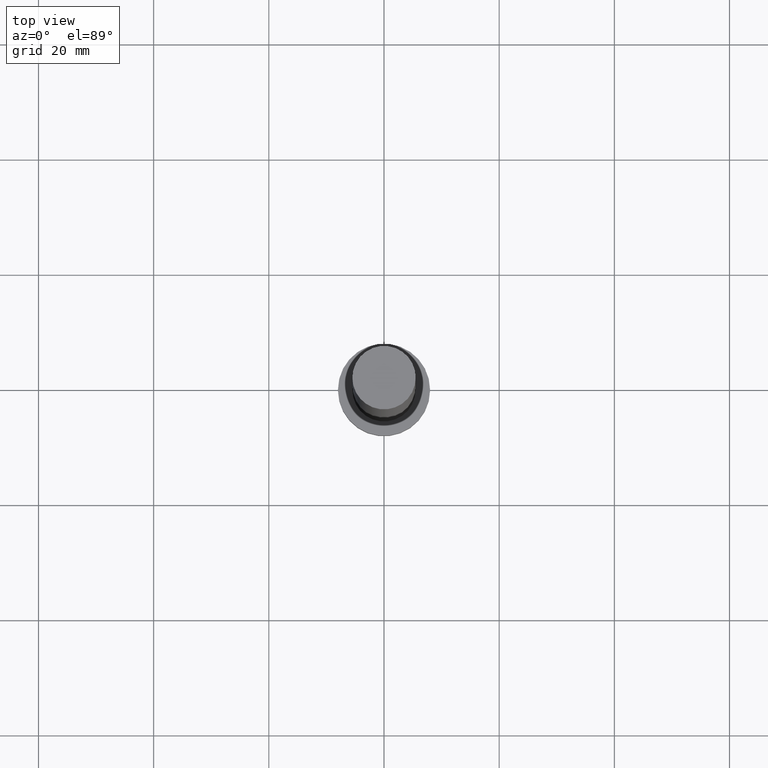
[diagram: clean part render]
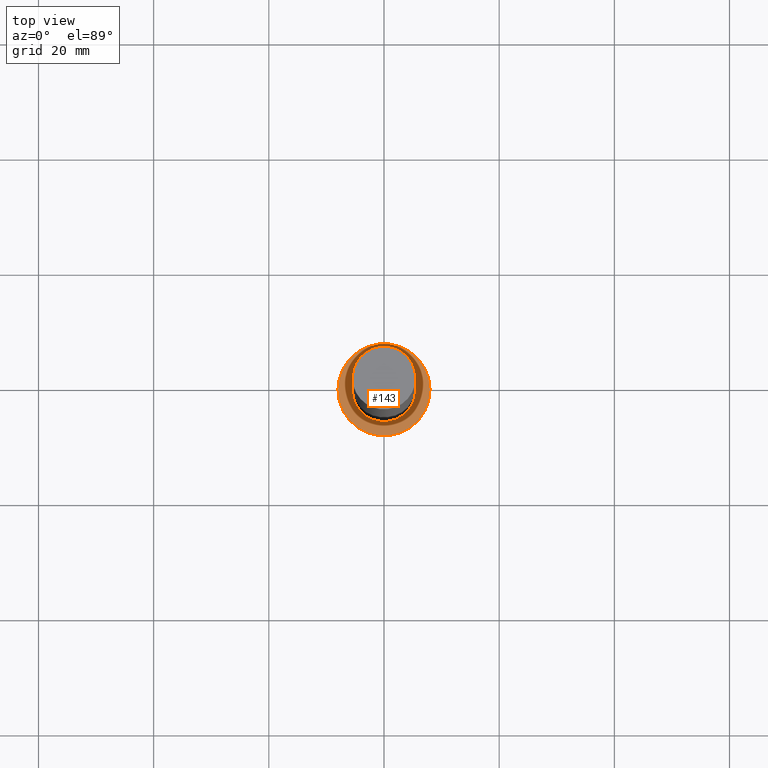
[diagram: same view with one face highlighted and labeled with its STEP entity id]
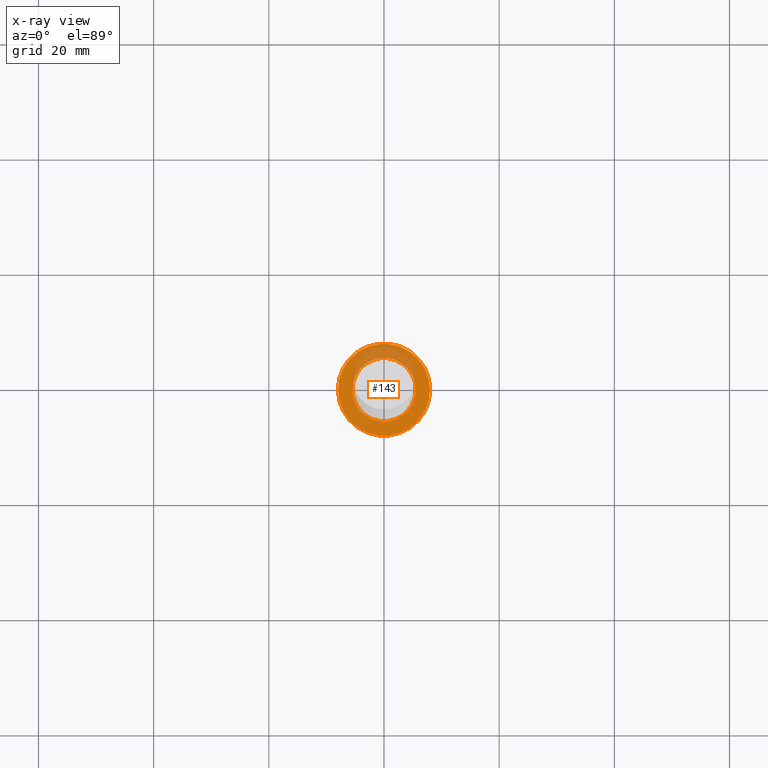
[diagram: x-ray of the same camera — body ghosted, the highlighted face saturated]
A machine part, top view. The second image highlights one B-rep face of the part: STEP entity #143.
The next image is the same camera in x-ray: the body ghosted, the highlighted face saturated — about 22% of this face is hidden behind the body in this view.
In plain terms, the highlighted planar face has unit normal (0, 0, 1).
Its self-contained STEP definition (entity closure, byte-faithful):
#15 = DIRECTION ( 'NONE',  ( 1.000000000000000000, 0.000000000000000000, 0.000000000000000000 ) ) ;
#20 = CARTESIAN_POINT ( 'NONE',  ( 0.000000000000000000, 0.000000000000000000, 5.000000000000000000 ) ) ;
#22 = FACE_BOUND ( 'NONE', #129, .T. ) ;
#25 = ORIENTED_EDGE ( 'NONE', *, *, #118, .F. ) ;
#30 = EDGE_CURVE ( 'NONE', #214, #140, #152, .T. ) ;
#32 = CARTESIAN_POINT ( 'NONE',  ( 0.000000000000000000, 0.000000000000000000, 5.000000000000000000 ) ) ;
#42 = CARTESIAN_POINT ( 'NONE',  ( 8.000000000000000000, 9.797174393178825657E-16, 5.000000000000000000 ) ) ;
#43 = ORIENTED_EDGE ( 'NONE', *, *, #80, .T. ) ;
#48 = CARTESIAN_POINT ( 'NONE',  ( -8.000000000000000000, 0.000000000000000000, 5.000000000000000000 ) ) ;
#66 = CARTESIAN_POINT ( 'NONE',  ( 0.000000000000000000, 0.000000000000000000, 5.000000000000000000 ) ) ;
#71 = DIRECTION ( 'NONE',  ( 0.000000000000000000, 0.000000000000000000, 1.000000000000000000 ) ) ;
#80 = EDGE_CURVE ( 'NONE', #204, #230, #203, .T. ) ;
#97 = DIRECTION ( 'NONE',  ( 0.000000000000000000, 0.000000000000000000, 1.000000000000000000 ) ) ;
#98 = AXIS2_PLACEMENT_3D ( 'NONE', #20, #71, #155 ) ;
#118 = EDGE_CURVE ( 'NONE', #140, #214, #229, .T. ) ;
#124 = AXIS2_PLACEMENT_3D ( 'NONE', #32, #150, #212 ) ;
#129 = EDGE_LOOP ( 'NONE', ( #177, #25 ) ) ;
#135 = AXIS2_PLACEMENT_3D ( 'NONE', #209, #220, #245 ) ;
#137 = CARTESIAN_POINT ( 'NONE',  ( -5.500000000000000000, 0.000000000000000000, 5.000000000000000000 ) ) ;
#140 = VERTEX_POINT ( 'NONE', #195 ) ;
#143 = ADVANCED_FACE ( 'NONE', ( #22, #197 ), #174, .T. ) ;
#150 = DIRECTION ( 'NONE',  ( 0.000000000000000000, 0.000000000000000000, 1.000000000000000000 ) ) ;
#151 = AXIS2_PLACEMENT_3D ( 'NONE', #196, #97, #172 ) ;
#152 = CIRCLE ( 'NONE', #156, 5.500000000000000000 ) ;
#155 = DIRECTION ( 'NONE',  ( 1.000000000000000000, 0.000000000000000000, -0.000000000000000000 ) ) ;
#156 = AXIS2_PLACEMENT_3D ( 'NONE', #66, #217, #15 ) ;
#172 = DIRECTION ( 'NONE',  ( 1.000000000000000000, 0.000000000000000000, 0.000000000000000000 ) ) ;
#174 = PLANE ( 'NONE',  #98 ) ;
#177 = ORIENTED_EDGE ( 'NONE', *, *, #30, .F. ) ;
#195 = CARTESIAN_POINT ( 'NONE',  ( 5.500000000000000000, 6.735557395310442023E-16, 5.000000000000000000 ) ) ;
#196 = CARTESIAN_POINT ( 'NONE',  ( 0.000000000000000000, 0.000000000000000000, 5.000000000000000000 ) ) ;
#197 = FACE_OUTER_BOUND ( 'NONE', #200, .T. ) ;
#200 = EDGE_LOOP ( 'NONE', ( #215, #43 ) ) ;
#203 = CIRCLE ( 'NONE', #124, 8.000000000000000000 ) ;
#204 = VERTEX_POINT ( 'NONE', #42 ) ;
#209 = CARTESIAN_POINT ( 'NONE',  ( 0.000000000000000000, 0.000000000000000000, 5.000000000000000000 ) ) ;
#212 = DIRECTION ( 'NONE',  ( 1.000000000000000000, 0.000000000000000000, 0.000000000000000000 ) ) ;
#214 = VERTEX_POINT ( 'NONE', #137 ) ;
#215 = ORIENTED_EDGE ( 'NONE', *, *, #222, .T. ) ;
#217 = DIRECTION ( 'NONE',  ( 0.000000000000000000, 0.000000000000000000, 1.000000000000000000 ) ) ;
#220 = DIRECTION ( 'NONE',  ( 0.000000000000000000, 0.000000000000000000, 1.000000000000000000 ) ) ;
#222 = EDGE_CURVE ( 'NONE', #230, #204, #244, .T. ) ;
#229 = CIRCLE ( 'NONE', #151, 5.500000000000000000 ) ;
#230 = VERTEX_POINT ( 'NONE', #48 ) ;
#244 = CIRCLE ( 'NONE', #135, 8.000000000000000000 ) ;
#245 = DIRECTION ( 'NONE',  ( 1.000000000000000000, 0.000000000000000000, 0.000000000000000000 ) ) ;